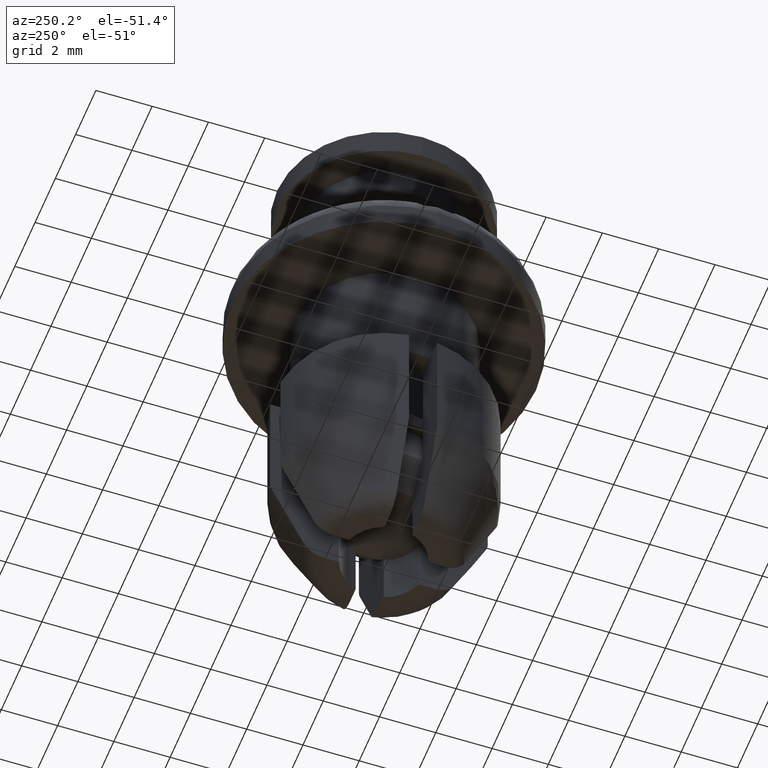
[diagram: clean part render]
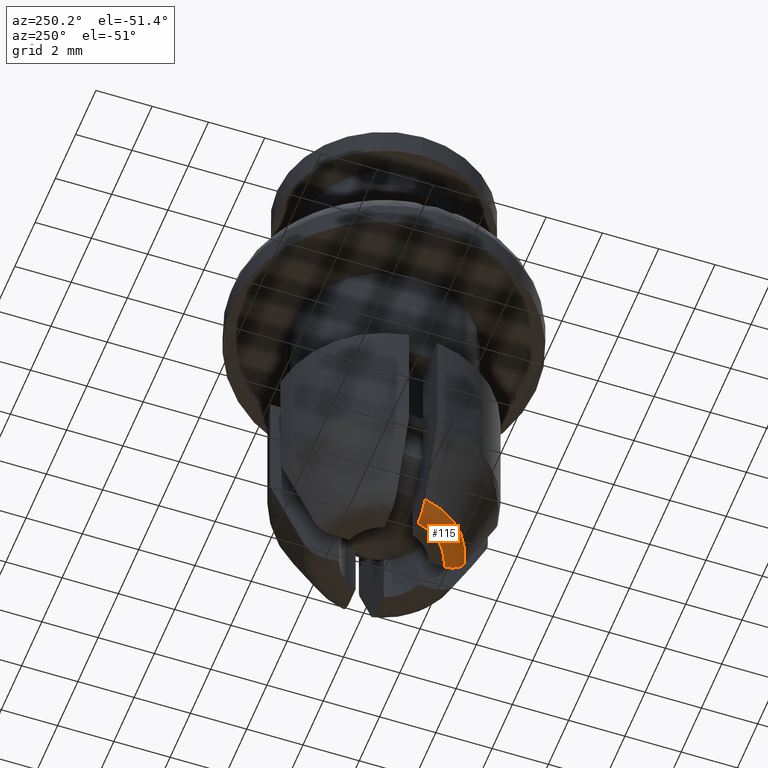
[diagram: same view with one face highlighted and labeled with its STEP entity id]
A machine part, auxiliary view. The second image highlights one B-rep face of the part: STEP entity #115.
In plain terms, the highlighted face is a freeform B-spline surface patch.
Its self-contained STEP definition (entity closure, byte-faithful):
#115=ADVANCED_FACE('',(#222),#221,.T.);
#221=( BOUNDED_SURFACE() B_SPLINE_SURFACE( 2,2,((#1009,#1010,#1011,#1012,#1013),(#1014,#1015,#1016,#1017,#1018),(#1019,#1020,#1021,#1022,#1023)), .UNSPECIFIED.,.F.,.F.,.F.) B_SPLINE_SURFACE_WITH_KNOTS((3,3),(3,2,3),(0.00000000000E+00,1.00000000000E+00),(0.00000000000E+00,5.00000000000E-01,1.00000000000E+00), .UNSPECIFIED. ) GEOMETRIC_REPRESENTATION_ITEM() RATIONAL_B_SPLINE_SURFACE(((1.00000000000E+00,8.39915589980E-01,1.00000000000E+00,8.39915589980E-01,1.00000000000E+00),(8.25533590707E-01,6.93378532887E-01,8.25533590707E-01,6.93378532887E-01,8.25533590707E-01),(1.00000000000E+00,8.39915589980E-01,1.00000000000E+00,8.39915589980E-01,1.00000000000E+00))) REPRESENTATION_ITEM('') SURFACE() );
#222=FACE_OUTER_BOUND('',#1024,.T.);
#1009=CARTESIAN_POINT('',(-4.99875197184E-01,-2.65958614131E+00,-1.30584872974E+01));
#1010=CARTESIAN_POINT('',(-4.63090979976E-01,-2.46387570227E+00,-1.35003000000E+01));
#1011=CARTESIAN_POINT('',(-3.73573458859E-01,-1.98759770347E+00,-1.35003000000E+01));
#1012=CARTESIAN_POINT('',(-2.84055937743E-01,-1.51131970467E+00,-1.35003000000E+01));
#1013=CARTESIAN_POINT('',(-2.47271720534E-01,-1.31560926563E+00,-1.30584872974E+01));
#1014=CARTESIAN_POINT('',(-2.31802698665E+00,-2.31786042311E+00,-1.30584872974E+01));
#1015=CARTESIAN_POINT('',(-2.14745079353E+00,-2.14729648686E+00,-1.35003000000E+01));
#1016=CARTESIAN_POINT('',(-1.73233911986E+00,-1.73221464136E+00,-1.35003000000E+01));
#1017=CARTESIAN_POINT('',(-1.31722744620E+00,-1.31713279585E+00,-1.35003000000E+01));
#1018=CARTESIAN_POINT('',(-1.14665125308E+00,-1.14656885961E+00,-1.30584872974E+01));
#1019=CARTESIAN_POINT('',(-2.65962205464E+00,-4.99684082503E-01,-1.30584872974E+01));
#1020=CARTESIAN_POINT('',(-2.46390897285E+00,-4.62913928813E-01,-1.35003000000E+01));
#1021=CARTESIAN_POINT('',(-1.98762454270E+00,-3.73430632464E-01,-1.35003000000E+01));
#1022=CARTESIAN_POINT('',(-1.51134011255E+00,-2.83947336115E-01,-1.35003000000E+01));
#1023=CARTESIAN_POINT('',(-1.31562703076E+00,-2.47177182425E-01,-1.30584872974E+01));
#1024=EDGE_LOOP('',(#1576,#1577,#1578,#1579));
#1576=ORIENTED_EDGE('',*,*,#1964,.F.);
#1577=ORIENTED_EDGE('',*,*,#1965,.F.);
#1578=ORIENTED_EDGE('',*,*,#1966,.F.);
#1579=ORIENTED_EDGE('',*,*,#1967,.T.);
#1964=EDGE_CURVE('',#2266,#2267,#2268,.T.);
#1965=EDGE_CURVE('',#2274,#2266,#2275,.T.);
#1966=EDGE_CURVE('',#2281,#2274,#2282,.T.);
#1967=EDGE_CURVE('',#2281,#2267,#2288,.T.);
#2266=VERTEX_POINT('',#3519);
#2267=VERTEX_POINT('',#3520);
#2268=(BOUNDED_CURVE() B_SPLINE_CURVE(3,(#3521,#3522,#3523,#3524,#3525,#3526),.UNSPECIFIED.,.F.,.F.) B_SPLINE_CURVE_WITH_KNOTS((4,2,4),(4.23260735159E-03,4.66709277576E-03,5.10157819993E-03),.UNSPECIFIED.) CURVE() GEOMETRIC_REPRESENTATION_ITEM() RATIONAL_B_SPLINE_CURVE((1.00000000000E+00,1.00000000000E+00,1.00000000000E+00,1.00000000000E+00,1.00000000000E+00,1.00000000000E+00)) REPRESENTATION_ITEM('') );
#2274=VERTEX_POINT('',#3527);
#2275=CIRCLE('',#3531,2.02240000000E+00);
#2281=VERTEX_POINT('',#3532);
#2282=(BOUNDED_CURVE() B_SPLINE_CURVE(3,(#3533,#3534,#3535,#3536,#3537,#3538,#3539,#3540),.UNSPECIFIED.,.F.,.F.) B_SPLINE_CURVE_WITH_KNOTS((4,2,2,4),(4.39422521439E-03,4.61144650580E-03,4.82866779722E-03,5.26311038005E-03),.UNSPECIFIED.) CURVE() GEOMETRIC_REPRESENTATION_ITEM() RATIONAL_B_SPLINE_CURVE((1.00000000000E+00,1.00000000000E+00,1.00000000000E+00,1.00000000000E+00,1.00000000000E+00,1.00000000000E+00,1.00000000000E+00,1.00000000000E+00)) REPRESENTATION_ITEM('') );
#2288=CIRCLE('',#3544,2.70602087899E+00);
#3519=CARTESIAN_POINT('',(-1.95961775865E+00,-5.00000000000E-01,-1.35003000000E+01));
#3520=CARTESIAN_POINT('',(-2.65942644146E+00,-5.00000000000E-01,-1.30587841873E+01));
#3521=CARTESIAN_POINT('',(-1.95961775865E+00,-5.00000000000E-01,-1.35003000000E+01));
#3522=CARTESIAN_POINT('',(-2.10444054588E+00,-5.00000000000E-01,-1.35003000000E+01));
#3523=CARTESIAN_POINT('',(-2.25044402903E+00,-5.00000000000E-01,-1.34596866826E+01));
#3524=CARTESIAN_POINT('',(-2.49815989338E+00,-5.00000000000E-01,-1.33047200137E+01));
#3525=CARTESIAN_POINT('',(-2.59886674646E+00,-5.00000000000E-01,-1.31906775465E+01));
#3526=CARTESIAN_POINT('',(-2.65942644146E+00,-5.00000000000E-01,-1.30587841873E+01));
#3527=CARTESIAN_POINT('',(-5.00000000000E-01,-1.95961775865E+00,-1.35003000000E+01));
#3528=CARTESIAN_POINT('',(0.00000000000E+00,0.00000000000E+00,-1.35003000000E+01));
#3529=DIRECTION('',(0.00000000000E+00,0.00000000000E+00,-1.00000000000E+00));
#3530=DIRECTION('',(1.00000000000E+00,-0.00000000000E+00,-0.00000000000E+00));
#3531=AXIS2_PLACEMENT_3D('',#3528,#3529,#3530);
#3532=CARTESIAN_POINT('',(-5.00000000000E-01,-2.65942644146E+00,-1.30587841873E+01));
#3533=CARTESIAN_POINT('',(-5.00000000000E-01,-2.65942644146E+00,-1.30587841873E+01));
#3534=CARTESIAN_POINT('',(-5.00000000000E-01,-2.62883165196E+00,-1.31254167812E+01));
#3535=CARTESIAN_POINT('',(-5.00000000000E-01,-2.58924640618E+00,-1.31861463645E+01));
#3536=CARTESIAN_POINT('',(-5.00000000000E-01,-2.49237695720E+00,-1.32959846377E+01));
#3537=CARTESIAN_POINT('',(-5.00000000000E-01,-2.43544102740E+00,-1.33440306375E+01));
#3538=CARTESIAN_POINT('',(-5.00000000000E-01,-2.25031963580E+00,-1.34596138444E+01));
#3539=CARTESIAN_POINT('',(-5.00000000000E-01,-2.10567423648E+00,-1.35003000000E+01));
#3540=CARTESIAN_POINT('',(-5.00000000000E-01,-1.95961775865E+00,-1.35003000000E+01));
#3541=CARTESIAN_POINT('',(0.00000000000E+00,0.00000000000E+00,-1.30587841873E+01));
#3542=DIRECTION('',(0.00000000000E+00,0.00000000000E+00,-1.00000000000E+00));
#3543=DIRECTION('',(1.00000000000E+00,-0.00000000000E+00,-0.00000000000E+00));
#3544=AXIS2_PLACEMENT_3D('',#3541,#3542,#3543);